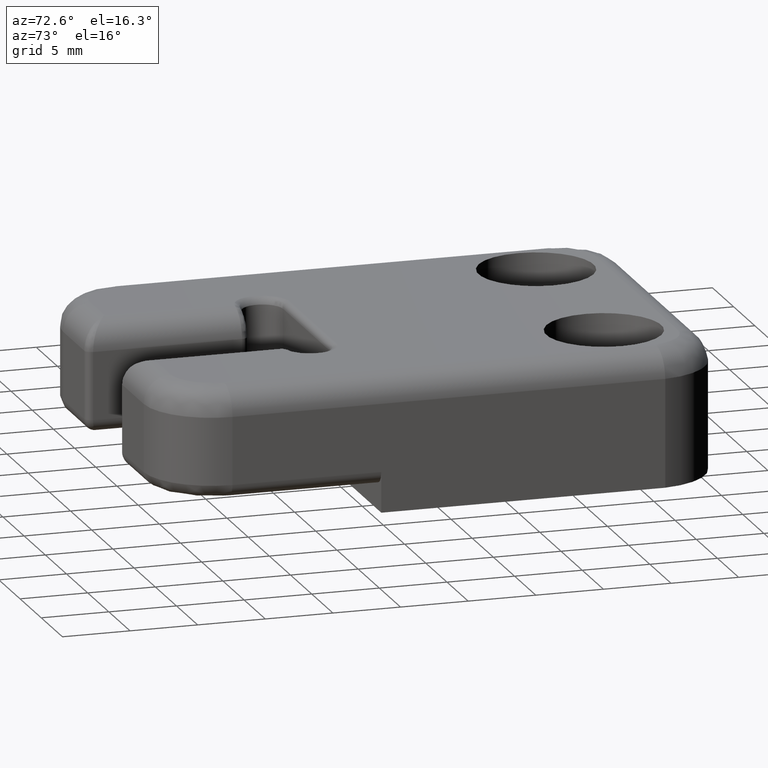
[diagram: clean part render]
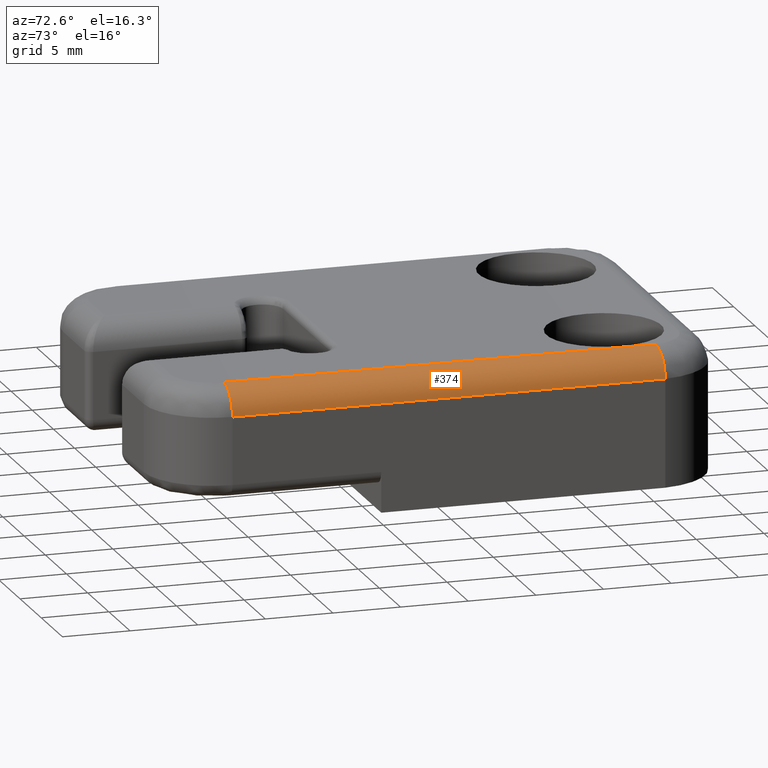
[diagram: same view with one face highlighted and labeled with its STEP entity id]
A machine part, auxiliary view. The second image highlights one B-rep face of the part: STEP entity #374.
In plain terms, the highlighted cylindrical surface (edge-blend (fillet) strip) has radius 2 mm, axis along (0, 1, 0).
Its self-contained STEP definition (entity closure, byte-faithful):
#330=CARTESIAN_POINT('',(12.500000000004547,-11.003970467914655,8.0));
#331=DIRECTION('',(0.0,1.0,0.0));
#332=DIRECTION('',(0.0,0.0,1.0));
#333=AXIS2_PLACEMENT_3D('',#330,#331,#332);
#334=CYLINDRICAL_SURFACE('',#333,2.0);
#335=CARTESIAN_POINT('',(14.500000000006366,20.996029532087960,8.0));
#336=VERTEX_POINT('',#335);
#337=CARTESIAN_POINT('',(12.500000000005002,20.877443972742071,10.0));
#338=VERTEX_POINT('',#337);
#339=CARTESIAN_POINT('',(14.500000000005457,20.996029532087903,8.0));
#340=CARTESIAN_POINT('',(14.500000000005457,20.996029532087732,8.192228837585494));
#341=CARTESIAN_POINT('',(14.424906992444903,20.992085311355993,8.711156646673928));
#342=CARTESIAN_POINT('',(13.984101352089056,20.968613439895535,9.458134956064528));
#343=CARTESIAN_POINT('',(13.234922229146378,20.925475613499941,9.918381085710651));
#344=CARTESIAN_POINT('',(12.704002144816968,20.891292540699737,9.999999999999938));
#345=CARTESIAN_POINT('',(12.500000000005002,20.877443972742128,10.0));
#346=B_SPLINE_CURVE_WITH_KNOTS('',3,(#339,#340,#341,#342,#343,#344,#345),.UNSPECIFIED.,.F.,.U.,(4,1,1,1,4),(0.0,0.578681016835441,1.552802432920815,2.528498752817997,3.144296034268056),.UNSPECIFIED.);
#347=EDGE_CURVE('',#336,#338,#346,.T.);
#348=ORIENTED_EDGE('',*,*,#347,.T.);
#349=CARTESIAN_POINT('',(12.500000000004547,-11.003970467914655,10.0));
#350=VERTEX_POINT('',#349);
#351=CARTESIAN_POINT('',(12.500000000004547,-11.003970467914655,10.0));
#352=DIRECTION('',(0.0,1.0,0.0));
#353=VECTOR('',#352,31.881414440656727);
#354=LINE('',#351,#353);
#355=EDGE_CURVE('',#350,#338,#354,.T.);
#356=ORIENTED_EDGE('',*,*,#355,.F.);
#357=CARTESIAN_POINT('',(14.500000000004547,-11.003970467914655,8.0));
#358=VERTEX_POINT('',#357);
#359=CARTESIAN_POINT('',(12.500000000004547,-11.003970467914655,8.0));
#360=DIRECTION('',(0.0,1.0,0.0));
#361=DIRECTION('',(0.0,0.0,1.0));
#362=AXIS2_PLACEMENT_3D('',#359,#360,#361);
#363=CIRCLE('',#362,2.0);
#364=EDGE_CURVE('',#350,#358,#363,.T.);
#365=ORIENTED_EDGE('',*,*,#364,.T.);
#366=CARTESIAN_POINT('',(14.500000000004547,-11.003970467914655,8.0));
#367=DIRECTION('',(0.0,1.0,0.0));
#368=VECTOR('',#367,32.000000000002444);
#369=LINE('',#366,#368);
#370=EDGE_CURVE('',#358,#336,#369,.T.);
#371=ORIENTED_EDGE('',*,*,#370,.T.);
#372=EDGE_LOOP('',(#348,#356,#365,#371));
#373=FACE_OUTER_BOUND('',#372,.T.);
#374=ADVANCED_FACE('',(#373),#334,.T.);